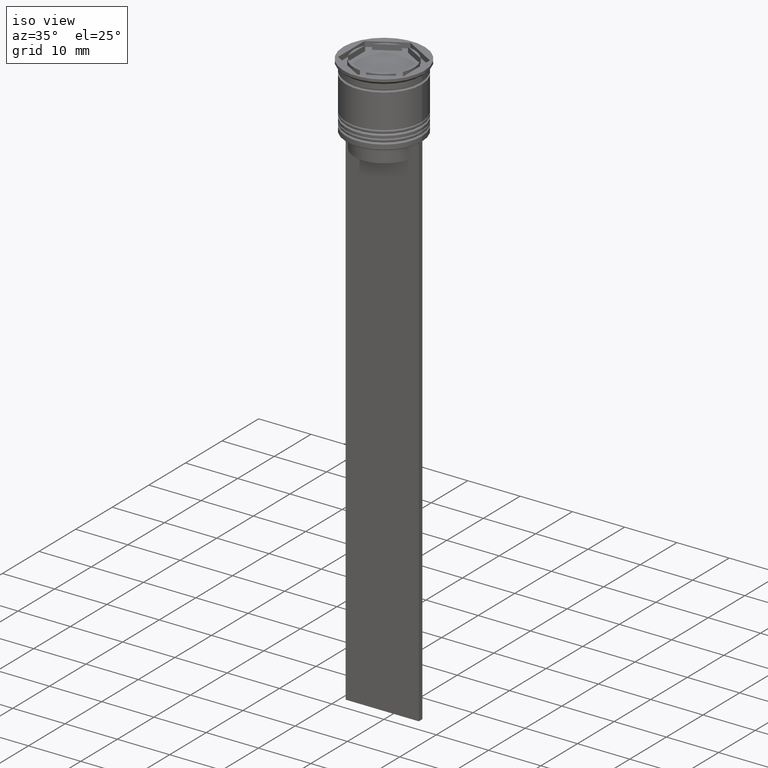
[diagram: clean part render]
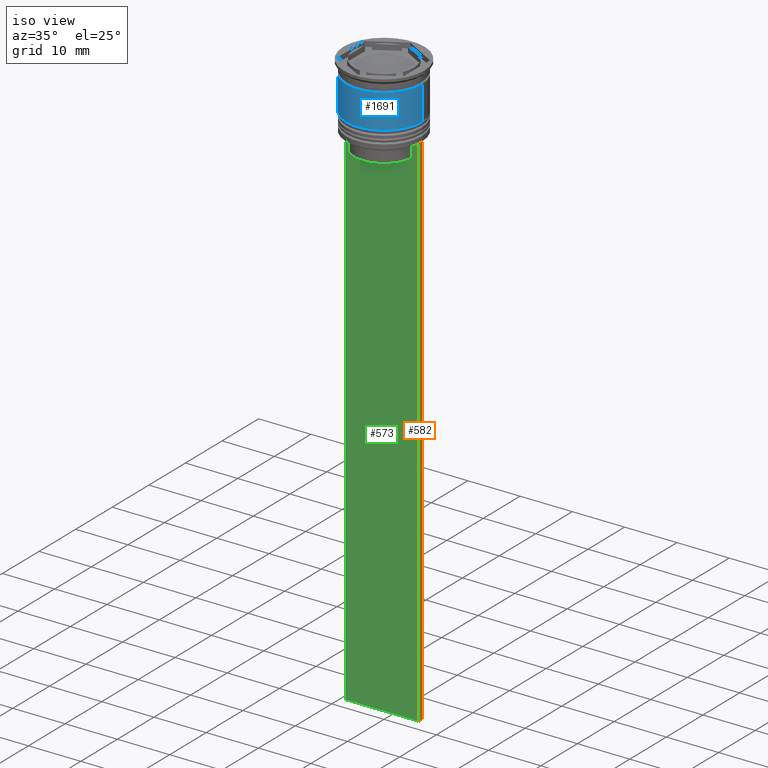
[diagram: same view with three faces highlighted in distinct colors, each labeled with its STEP entity id]
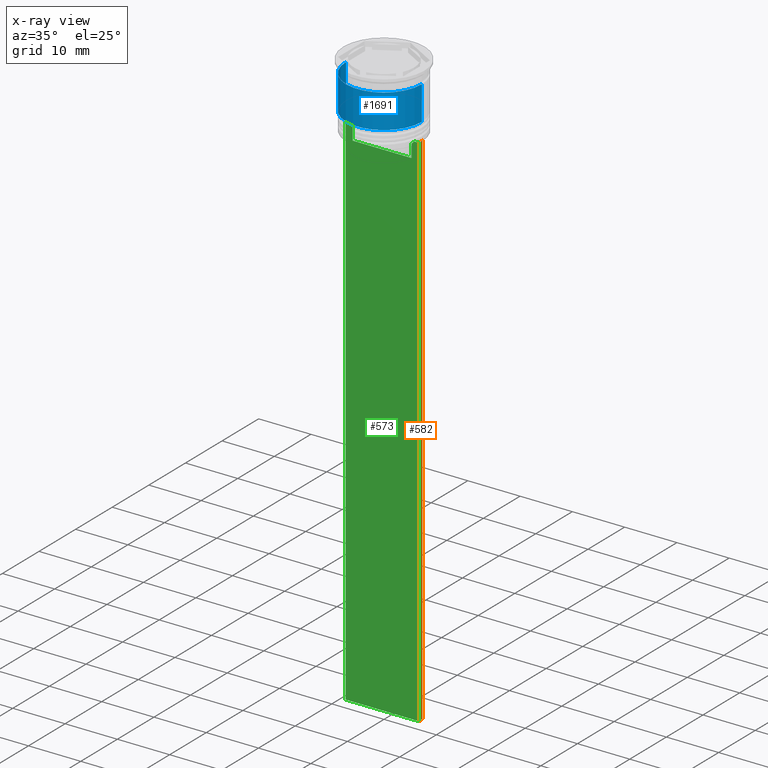
[diagram: x-ray of the same camera — body ghosted, the three highlighted faces saturated]
A machine part, iso view with three faces highlighted in distinct colors.
The next image is the same camera in x-ray (body ghosted, the three faces saturated) — at least one of them is partly hidden behind the body in this view.
Their STEP definitions:

[orange] entity #582 — the highlighted planar face has unit normal (-1, 0, 0).
#18 = VERTEX_POINT ( 'NONE', #993 ) ;
#64 = AXIS2_PLACEMENT_3D ( 'NONE', #1430, #2141, #341 ) ;
#178 = CARTESIAN_POINT ( 'NONE',  ( 7.000000000000012434, -0.5000000000000022204, -12.50000000000000000 ) ) ;
#341 = DIRECTION ( 'NONE',  ( 0.000000000000000000, 0.000000000000000000, 1.000000000000000000 ) ) ;
#419 = CARTESIAN_POINT ( 'NONE',  ( 7.000000000000012434, -0.5000000000000022204, 1.535668847618198329 ) ) ;
#582 = ADVANCED_FACE ( 'NONE', ( #696 ), #2158, .F. ) ;
#587 = CARTESIAN_POINT ( 'NONE',  ( 7.000000000000012434, 0.4999999999999978351, 1.535668847618198329 ) ) ;
#599 = LINE ( 'NONE', #419, #979 ) ;
#696 = FACE_OUTER_BOUND ( 'NONE', #1623, .T. ) ;
#736 = DIRECTION ( 'NONE',  ( 0.000000000000000000, -1.000000000000000000, 0.000000000000000000 ) ) ;
#779 = DIRECTION ( 'NONE',  ( 0.000000000000000000, 0.000000000000000000, -1.000000000000000000 ) ) ;
#785 = VECTOR ( 'NONE', #736, 1000.000000000000000 ) ;
#792 = VERTEX_POINT ( 'NONE', #2245 ) ;
#844 = EDGE_CURVE ( 'NONE', #18, #987, #599, .T. ) ;
#872 = ORIENTED_EDGE ( 'NONE', *, *, #1908, .T. ) ;
#971 = ORIENTED_EDGE ( 'NONE', *, *, #844, .T. ) ;
#979 = VECTOR ( 'NONE', #1335, 1000.000000000000000 ) ;
#987 = VERTEX_POINT ( 'NONE', #1169 ) ;
#993 = CARTESIAN_POINT ( 'NONE',  ( 7.000000000000012434, -0.5000000000000022204, -12.50000000000000000 ) ) ;
#1005 = ORIENTED_EDGE ( 'NONE', *, *, #2295, .F. ) ;
#1146 = VECTOR ( 'NONE', #779, 1000.000000000000000 ) ;
#1169 = CARTESIAN_POINT ( 'NONE',  ( 7.000000000000012434, -0.5000000000000022204, -112.5000000000000000 ) ) ;
#1182 = LINE ( 'NONE', #587, #1146 ) ;
#1253 = CARTESIAN_POINT ( 'NONE',  ( 7.000000000000012434, 0.4999999999999978351, -112.5000000000000000 ) ) ;
#1283 = EDGE_CURVE ( 'NONE', #792, #18, #1838, .T. ) ;
#1335 = DIRECTION ( 'NONE',  ( 0.000000000000000000, 0.000000000000000000, -1.000000000000000000 ) ) ;
#1430 = CARTESIAN_POINT ( 'NONE',  ( 7.000000000000012434, -0.5000000000000022204, 1.535668847618198329 ) ) ;
#1480 = VECTOR ( 'NONE', #1568, 1000.000000000000000 ) ;
#1568 = DIRECTION ( 'NONE',  ( 0.000000000000000000, 1.000000000000000000, 0.000000000000000000 ) ) ;
#1623 = EDGE_LOOP ( 'NONE', ( #1005, #1932, #971, #872 ) ) ;
#1838 = LINE ( 'NONE', #178, #785 ) ;
#1908 = EDGE_CURVE ( 'NONE', #987, #2114, #2294, .T. ) ;
#1932 = ORIENTED_EDGE ( 'NONE', *, *, #1283, .T. ) ;
#2114 = VERTEX_POINT ( 'NONE', #1253 ) ;
#2119 = CARTESIAN_POINT ( 'NONE',  ( 7.000000000000012434, -0.5000000000000022204, -112.5000000000000000 ) ) ;
#2141 = DIRECTION ( 'NONE',  ( -1.000000000000000000, 0.000000000000000000, 0.000000000000000000 ) ) ;
#2158 = PLANE ( 'NONE',  #64 ) ;
#2245 = CARTESIAN_POINT ( 'NONE',  ( 7.000000000000012434, 0.4999999999999978351, -12.50000000000000000 ) ) ;
#2294 = LINE ( 'NONE', #2119, #1480 ) ;
#2295 = EDGE_CURVE ( 'NONE', #792, #2114, #1182, .T. ) ;

[blue] entity #1691 — the highlighted cylindrical surface (partial cylindrical patch) has radius 7.25 mm, axis along (-0, -0, 1).
#67 = DIRECTION ( 'NONE',  ( -0.000000000000000000, -0.000000000000000000, 1.000000000000000000 ) ) ;
#110 = VECTOR ( 'NONE', #67, 1000.000000000000000 ) ;
#136 = ORIENTED_EDGE ( 'NONE', *, *, #1565, .T. ) ;
#139 = CARTESIAN_POINT ( 'NONE',  ( 7.250000000000000888, 0.000000000000000000, -9.000000000000001776 ) ) ;
#142 = AXIS2_PLACEMENT_3D ( 'NONE', #325, #1617, #865 ) ;
#273 = VERTEX_POINT ( 'NONE', #309 ) ;
#309 = CARTESIAN_POINT ( 'NONE',  ( -7.250000000000000888, 8.878689293818312046E-16, -9.000000000000001776 ) ) ;
#325 = CARTESIAN_POINT ( 'NONE',  ( 0.000000000000000000, 0.000000000000000000, -9.000000000000001776 ) ) ;
#378 = EDGE_LOOP ( 'NONE', ( #928, #387, #136, #701 ) ) ;
#387 = ORIENTED_EDGE ( 'NONE', *, *, #571, .T. ) ;
#398 = VERTEX_POINT ( 'NONE', #647 ) ;
#418 = CARTESIAN_POINT ( 'NONE',  ( 7.249999999999999112, 0.000000000000000000, 0.000000000000000000 ) ) ;
#570 = VERTEX_POINT ( 'NONE', #139 ) ;
#571 = EDGE_CURVE ( 'NONE', #273, #570, #1014, .T. ) ;
#633 = VERTEX_POINT ( 'NONE', #2168 ) ;
#647 = CARTESIAN_POINT ( 'NONE',  ( -7.249999999999997335, 8.878689293818308102E-16, -2.500000000000000444 ) ) ;
#701 = ORIENTED_EDGE ( 'NONE', *, *, #967, .F. ) ;
#828 = DIRECTION ( 'NONE',  ( 1.000000000000000000, 0.000000000000000000, 0.000000000000000000 ) ) ;
#836 = FACE_OUTER_BOUND ( 'NONE', #378, .T. ) ;
#865 = DIRECTION ( 'NONE',  ( 1.000000000000000000, 0.000000000000000000, 0.000000000000000000 ) ) ;
#907 = EDGE_CURVE ( 'NONE', #273, #398, #2262, .T. ) ;
#928 = ORIENTED_EDGE ( 'NONE', *, *, #907, .F. ) ;
#967 = EDGE_CURVE ( 'NONE', #398, #633, #1252, .T. ) ;
#974 = CARTESIAN_POINT ( 'NONE',  ( -7.249999999999999112, 8.878689293818310074E-16, 0.000000000000000000 ) ) ;
#1004 = CYLINDRICAL_SURFACE ( 'NONE', #1063, 7.249999999999999112 ) ;
#1014 = CIRCLE ( 'NONE', #142, 7.250000000000000888 ) ;
#1063 = AXIS2_PLACEMENT_3D ( 'NONE', #2117, #1889, #2256 ) ;
#1252 = CIRCLE ( 'NONE', #2111, 7.249999999999997335 ) ;
#1310 = LINE ( 'NONE', #418, #110 ) ;
#1525 = DIRECTION ( 'NONE',  ( -0.000000000000000000, -0.000000000000000000, 1.000000000000000000 ) ) ;
#1559 = CARTESIAN_POINT ( 'NONE',  ( 0.000000000000000000, 0.000000000000000000, -2.500000000000000444 ) ) ;
#1565 = EDGE_CURVE ( 'NONE', #570, #633, #1310, .T. ) ;
#1617 = DIRECTION ( 'NONE',  ( -0.000000000000000000, -0.000000000000000000, 1.000000000000000000 ) ) ;
#1691 = ADVANCED_FACE ( 'NONE', ( #836 ), #1004, .T. ) ;
#1889 = DIRECTION ( 'NONE',  ( -0.000000000000000000, -0.000000000000000000, 1.000000000000000000 ) ) ;
#2070 = DIRECTION ( 'NONE',  ( -0.000000000000000000, -0.000000000000000000, 1.000000000000000000 ) ) ;
#2111 = AXIS2_PLACEMENT_3D ( 'NONE', #1559, #2070, #828 ) ;
#2117 = CARTESIAN_POINT ( 'NONE',  ( 0.000000000000000000, 0.000000000000000000, 0.000000000000000000 ) ) ;
#2148 = VECTOR ( 'NONE', #1525, 1000.000000000000000 ) ;
#2168 = CARTESIAN_POINT ( 'NONE',  ( 7.249999999999997335, 0.000000000000000000, -2.500000000000000444 ) ) ;
#2256 = DIRECTION ( 'NONE',  ( 1.000000000000000000, 0.000000000000000000, 0.000000000000000000 ) ) ;
#2262 = LINE ( 'NONE', #974, #2148 ) ;

[green] entity #573 — the highlighted planar face has unit normal (0, -1, -0).
#5 = CARTESIAN_POINT ( 'NONE',  ( -6.999999999999987566, -0.5000000000000022204, -12.50000000000000000 ) ) ;
#14 = DIRECTION ( 'NONE',  ( 0.000000000000000000, 0.000000000000000000, -1.000000000000000000 ) ) ;
#18 = VERTEX_POINT ( 'NONE', #993 ) ;
#54 = CARTESIAN_POINT ( 'NONE',  ( 5.627832620112292794, -0.5000000000000022204, 0.000000000000000000 ) ) ;
#113 = B_SPLINE_CURVE_WITH_KNOTS ( 'NONE', 3,
 ( #838, #116, #1199, #138 ),
 .UNSPECIFIED., .F., .F.,
 ( 4, 4 ),
 ( 0.02651134470867370918, 0.02721991123504334531 ),
 .UNSPECIFIED. ) ;
#116 = CARTESIAN_POINT ( 'NONE',  ( 5.795128760752288777, -0.5000000000000022204, -12.83336023406855375 ) ) ;
#119 = LINE ( 'NONE', #1009, #1583 ) ;
#138 = CARTESIAN_POINT ( 'NONE',  ( 6.129641098791995368, -0.5000000000000022204, -12.50000000000000000 ) ) ;
#156 = EDGE_CURVE ( 'NONE', #987, #837, #119, .T. ) ;
#172 = CARTESIAN_POINT ( 'NONE',  ( 7.000000000000012434, -0.5000000000000022204, -12.50000000000000000 ) ) ;
#185 = EDGE_CURVE ( 'NONE', #2225, #18, #2276, .T. ) ;
#199 = CARTESIAN_POINT ( 'NONE',  ( -5.795128834036803234, -0.5000000000000022204, -12.83336016107156574 ) ) ;
#232 = EDGE_LOOP ( 'NONE', ( #737, #2143, #1160, #2017, #1537, #367, #567, #1064, #2310, #1783 ) ) ;
#290 = DIRECTION ( 'NONE',  ( 0.000000000000000000, 0.000000000000000000, -1.000000000000000000 ) ) ;
#340 = EDGE_CURVE ( 'NONE', #1279, #1636, #1893, .T. ) ;
#362 = VECTOR ( 'NONE', #290, 1000.000000000000000 ) ;
#367 = ORIENTED_EDGE ( 'NONE', *, *, #185, .F. ) ;
#417 = B_SPLINE_CURVE_WITH_KNOTS ( 'NONE', 3,
 ( #707, #1640, #199, #532 ),
 .UNSPECIFIED., .F., .F.,
 ( 4, 4 ),
 ( 0.01045365750109871796, 0.01116204421161398619 ),
 .UNSPECIFIED. ) ;
#419 = CARTESIAN_POINT ( 'NONE',  ( 7.000000000000012434, -0.5000000000000022204, 1.535668847618198329 ) ) ;
#422 = CARTESIAN_POINT ( 'NONE',  ( -5.627832620112292794, -0.5000000000000022204, 0.000000000000000000 ) ) ;
#458 = DIRECTION ( 'NONE',  ( -1.000000000000000000, 0.000000000000000000, 0.000000000000000000 ) ) ;
#505 = CARTESIAN_POINT ( 'NONE',  ( 7.000000000000012434, -0.5000000000000022204, 1.535668847618198329 ) ) ;
#532 = CARTESIAN_POINT ( 'NONE',  ( -5.627832620112292794, -0.5000000000000022204, -13.00000000000000000 ) ) ;
#541 = CARTESIAN_POINT ( 'NONE',  ( 0.000000000000000000, -0.5000000000000022204, -15.50000000000000000 ) ) ;
#567 = ORIENTED_EDGE ( 'NONE', *, *, #1902, .F. ) ;
#573 = ADVANCED_FACE ( 'NONE', ( #1059 ), #2333, .T. ) ;
#599 = LINE ( 'NONE', #419, #979 ) ;
#643 = EDGE_CURVE ( 'NONE', #1636, #996, #1835, .T. ) ;
#652 = CARTESIAN_POINT ( 'NONE',  ( -5.627832620112292794, -0.5000000000000022204, -15.50000000000000000 ) ) ;
#707 = CARTESIAN_POINT ( 'NONE',  ( -6.129641098791995368, -0.5000000000000022204, -12.50000000000000000 ) ) ;
#723 = CARTESIAN_POINT ( 'NONE',  ( 5.627832620112292794, -0.5000000000000022204, -13.00000000000000000 ) ) ;
#737 = ORIENTED_EDGE ( 'NONE', *, *, #1490, .F. ) ;
#837 = VERTEX_POINT ( 'NONE', #1345 ) ;
#838 = CARTESIAN_POINT ( 'NONE',  ( 5.627832620112292794, -0.5000000000000022204, -13.00000000000000000 ) ) ;
#844 = EDGE_CURVE ( 'NONE', #18, #987, #599, .T. ) ;
#899 = DIRECTION ( 'NONE',  ( 1.000000000000000000, 0.000000000000000000, 0.000000000000000000 ) ) ;
#979 = VECTOR ( 'NONE', #1335, 1000.000000000000000 ) ;
#987 = VERTEX_POINT ( 'NONE', #1169 ) ;
#991 = CARTESIAN_POINT ( 'NONE',  ( 5.627832620112292794, -0.5000000000000022204, -15.50000000000000000 ) ) ;
#993 = CARTESIAN_POINT ( 'NONE',  ( 7.000000000000012434, -0.5000000000000022204, -12.50000000000000000 ) ) ;
#996 = VERTEX_POINT ( 'NONE', #991 ) ;
#1009 = CARTESIAN_POINT ( 'NONE',  ( 7.000000000000012434, -0.5000000000000022204, -112.5000000000000000 ) ) ;
#1059 = FACE_OUTER_BOUND ( 'NONE', #232, .T. ) ;
#1064 = ORIENTED_EDGE ( 'NONE', *, *, #2179, .F. ) ;
#1115 = CARTESIAN_POINT ( 'NONE',  ( -6.129641098791995368, -0.5000000000000022204, -12.50000000000000000 ) ) ;
#1149 = CARTESIAN_POINT ( 'NONE',  ( 6.129641098791995368, -0.5000000000000022204, -12.50000000000000000 ) ) ;
#1150 = EDGE_CURVE ( 'NONE', #1152, #837, #1201, .T. ) ;
#1152 = VERTEX_POINT ( 'NONE', #5 ) ;
#1160 = ORIENTED_EDGE ( 'NONE', *, *, #1150, .T. ) ;
#1169 = CARTESIAN_POINT ( 'NONE',  ( 7.000000000000012434, -0.5000000000000022204, -112.5000000000000000 ) ) ;
#1199 = CARTESIAN_POINT ( 'NONE',  ( 5.962396079681182570, -0.5000000000000022204, -12.66669137279835766 ) ) ;
#1201 = LINE ( 'NONE', #1278, #2342 ) ;
#1228 = VERTEX_POINT ( 'NONE', #1115 ) ;
#1278 = CARTESIAN_POINT ( 'NONE',  ( -6.999999999999987566, -0.5000000000000022204, 1.535668847618198329 ) ) ;
#1279 = VERTEX_POINT ( 'NONE', #1487 ) ;
#1325 = AXIS2_PLACEMENT_3D ( 'NONE', #505, #1966, #2322 ) ;
#1335 = DIRECTION ( 'NONE',  ( 0.000000000000000000, 0.000000000000000000, -1.000000000000000000 ) ) ;
#1345 = CARTESIAN_POINT ( 'NONE',  ( -6.999999999999987566, -0.5000000000000022204, -112.5000000000000000 ) ) ;
#1385 = VERTEX_POINT ( 'NONE', #723 ) ;
#1411 = EDGE_CURVE ( 'NONE', #1152, #1228, #1984, .T. ) ;
#1460 = DIRECTION ( 'NONE',  ( 1.000000000000000000, 0.000000000000000000, 0.000000000000000000 ) ) ;
#1470 = VECTOR ( 'NONE', #899, 1000.000000000000000 ) ;
#1487 = CARTESIAN_POINT ( 'NONE',  ( -5.627832620112292794, -0.5000000000000022204, -13.00000000000000000 ) ) ;
#1490 = EDGE_CURVE ( 'NONE', #1228, #1279, #417, .T. ) ;
#1537 = ORIENTED_EDGE ( 'NONE', *, *, #844, .F. ) ;
#1583 = VECTOR ( 'NONE', #458, 1000.000000000000000 ) ;
#1636 = VERTEX_POINT ( 'NONE', #652 ) ;
#1640 = CARTESIAN_POINT ( 'NONE',  ( -5.962396146966409738, -0.5000000000000022204, -12.66669130573587054 ) ) ;
#1783 = ORIENTED_EDGE ( 'NONE', *, *, #340, .F. ) ;
#1835 = LINE ( 'NONE', #541, #1470 ) ;
#1856 = LINE ( 'NONE', #54, #2008 ) ;
#1876 = VECTOR ( 'NONE', #2288, 1000.000000000000000 ) ;
#1893 = LINE ( 'NONE', #422, #362 ) ;
#1902 = EDGE_CURVE ( 'NONE', #1385, #2225, #113, .T. ) ;
#1960 = VECTOR ( 'NONE', #1460, 1000.000000000000000 ) ;
#1966 = DIRECTION ( 'NONE',  ( 0.000000000000000000, -1.000000000000000000, -0.000000000000000000 ) ) ;
#1984 = LINE ( 'NONE', #172, #1960 ) ;
#2008 = VECTOR ( 'NONE', #2221, 1000.000000000000000 ) ;
#2017 = ORIENTED_EDGE ( 'NONE', *, *, #156, .F. ) ;
#2125 = CARTESIAN_POINT ( 'NONE',  ( 7.000000000000012434, -0.5000000000000022204, -12.50000000000000000 ) ) ;
#2143 = ORIENTED_EDGE ( 'NONE', *, *, #1411, .F. ) ;
#2179 = EDGE_CURVE ( 'NONE', #996, #1385, #1856, .T. ) ;
#2221 = DIRECTION ( 'NONE',  ( -0.000000000000000000, -0.000000000000000000, 1.000000000000000000 ) ) ;
#2225 = VERTEX_POINT ( 'NONE', #1149 ) ;
#2276 = LINE ( 'NONE', #2125, #1876 ) ;
#2288 = DIRECTION ( 'NONE',  ( 1.000000000000000000, 0.000000000000000000, 0.000000000000000000 ) ) ;
#2310 = ORIENTED_EDGE ( 'NONE', *, *, #643, .F. ) ;
#2322 = DIRECTION ( 'NONE',  ( 0.000000000000000000, 0.000000000000000000, -1.000000000000000000 ) ) ;
#2333 = PLANE ( 'NONE',  #1325 ) ;
#2342 = VECTOR ( 'NONE', #14, 1000.000000000000000 ) ;